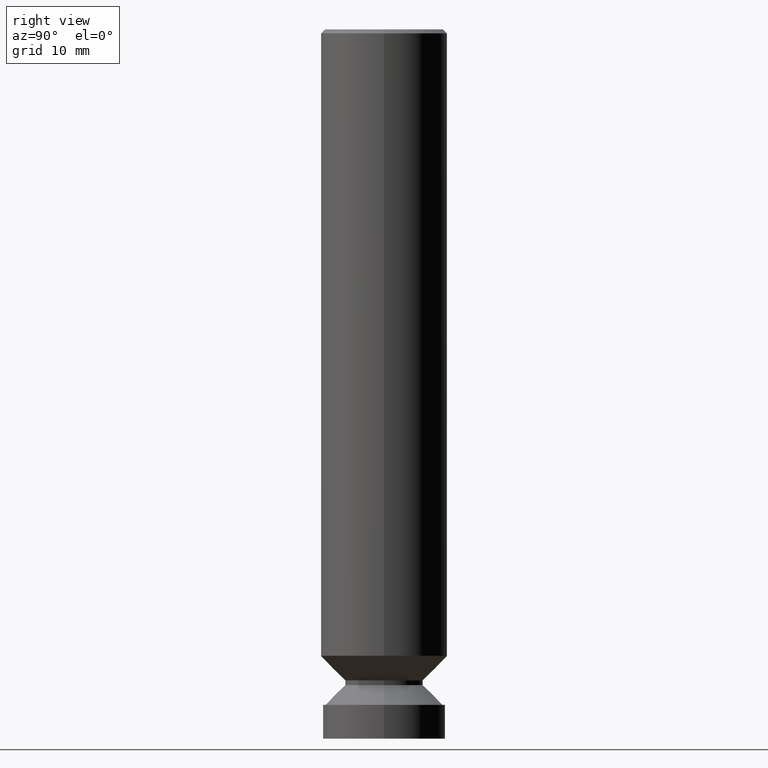
[diagram: clean part render]
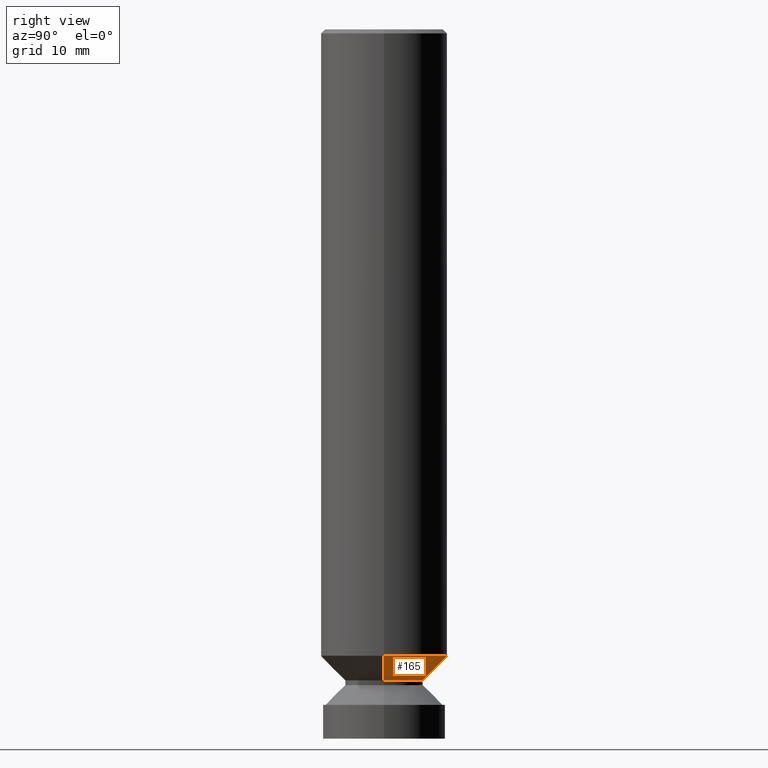
[diagram: same view with one face highlighted and labeled with its STEP entity id]
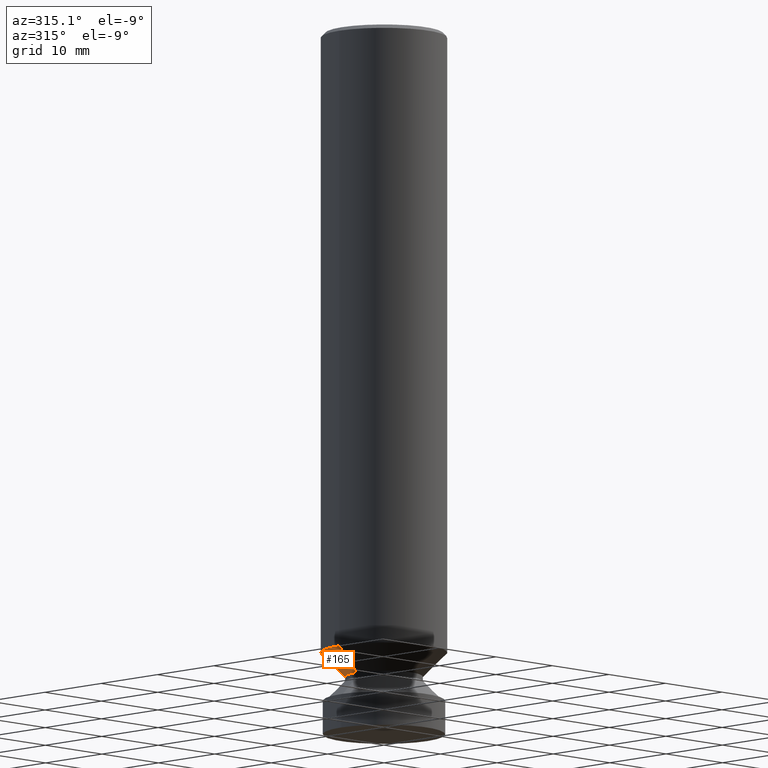
[diagram: same view with one face highlighted and labeled with its STEP entity id]
A machine part, right view. The second image highlights one B-rep face of the part: STEP entity #165.
A second angle (auxiliary view) of the same face is appended — the face is thin or edge-on in the first view.
In plain terms, the highlighted conical surface has half-angle 45 deg.
Its self-contained STEP definition (entity closure, byte-faithful):
#3 = CARTESIAN_POINT ( 'NONE',  ( 7.855333339314627254E-29, -1.121533412948922282E-14, -3.212199362120970125 ) ) ;
#5 = ORIENTED_EDGE ( 'NONE', *, *, #248, .F. ) ;
#10 = LINE ( 'NONE', #708, #456 ) ;
#22 = VERTEX_POINT ( 'NONE', #438 ) ;
#32 = DIRECTION ( 'NONE',  ( -2.445468806185136597E-29, 3.491481338843145583E-15, 1.000000000000000000 ) ) ;
#75 = CONICAL_SURFACE ( 'NONE', #480, 0.1922500000000000042, 0.7853981633974964627 ) ;
#85 = EDGE_CURVE ( 'NONE', #284, #22, #365, .T. ) ;
#89 = LINE ( 'NONE', #222, #681 ) ;
#121 = CARTESIAN_POINT ( 'NONE',  ( 0.1922500000000000042, -1.255780870427440876E-14, -3.212199362120970125 ) ) ;
#165 = ADVANCED_FACE ( 'NONE', ( #167 ), #75, .T. ) ;
#167 = FACE_OUTER_BOUND ( 'NONE', #710, .T. ) ;
#169 = DIRECTION ( 'NONE',  ( 1.000000000000000000, -6.982962677686269077E-15, 0.000000000000000000 ) ) ;
#217 = VERTEX_POINT ( 'NONE', #570 ) ;
#222 = CARTESIAN_POINT ( 'NONE',  ( -0.1922500000000000042, -9.849315719990429988E-15, -3.212199362120970125 ) ) ;
#248 = EDGE_CURVE ( 'NONE', #217, #705, #663, .T. ) ;
#284 = VERTEX_POINT ( 'NONE', #121 ) ;
#298 = CARTESIAN_POINT ( 'NONE',  ( 7.561265715370891456E-29, -1.079548349849337449E-14, -3.091949362120981704 ) ) ;
#322 = AXIS2_PLACEMENT_3D ( 'NONE', #3, #536, #457 ) ;
#338 = ORIENTED_EDGE ( 'NONE', *, *, #814, .F. ) ;
#353 = CARTESIAN_POINT ( 'NONE',  ( 7.855333339314627254E-29, -1.121533412948922282E-14, -3.212199362120970125 ) ) ;
#365 = CIRCLE ( 'NONE', #322, 0.1922500000000000042 ) ;
#408 = ORIENTED_EDGE ( 'NONE', *, *, #554, .T. ) ;
#413 = ORIENTED_EDGE ( 'NONE', *, *, #85, .T. ) ;
#423 = CARTESIAN_POINT ( 'NONE',  ( -0.3125000000000000000, -8.575037449243061404E-15, -3.091949362120981704 ) ) ;
#438 = CARTESIAN_POINT ( 'NONE',  ( -0.1922500000000000042, -9.890340625721883836E-15, -3.212199362120970125 ) ) ;
#456 = VECTOR ( 'NONE', #698, 39.37007874015748143 ) ;
#457 = DIRECTION ( 'NONE',  ( 1.000000000000000000, -6.982962677686265133E-15, 0.000000000000000000 ) ) ;
#480 = AXIS2_PLACEMENT_3D ( 'NONE', #353, #32, #487 ) ;
#487 = DIRECTION ( 'NONE',  ( 1.000000000000000000, -6.982962677686265133E-15, 0.000000000000000000 ) ) ;
#536 = DIRECTION ( 'NONE',  ( -2.445468806185136597E-29, 3.491481338843145583E-15, 1.000000000000000000 ) ) ;
#554 = EDGE_CURVE ( 'NONE', #22, #705, #89, .T. ) ;
#570 = CARTESIAN_POINT ( 'NONE',  ( 0.3125000000000000000, -1.297765933527033441E-14, -3.091949362120981704 ) ) ;
#597 = DIRECTION ( 'NONE',  ( -0.7071067811865815456, 7.493145998870477222E-15, 0.7071067811865134889 ) ) ;
#663 = CIRCLE ( 'NONE', #722, 0.3125000000000000000 ) ;
#681 = VECTOR ( 'NONE', #597, 39.37007874015748143 ) ;
#698 = DIRECTION ( 'NONE',  ( 0.7071067811865815456, -2.468850131082613626E-15, 0.7071067811865134889 ) ) ;
#705 = VERTEX_POINT ( 'NONE', #423 ) ;
#708 = CARTESIAN_POINT ( 'NONE',  ( 0.1922500000000000042, -1.255780870427440876E-14, -3.212199362120970125 ) ) ;
#710 = EDGE_LOOP ( 'NONE', ( #413, #408, #5, #338 ) ) ;
#722 = AXIS2_PLACEMENT_3D ( 'NONE', #298, #754, #169 ) ;
#754 = DIRECTION ( 'NONE',  ( -2.445468806185136597E-29, 3.491481338843145583E-15, 1.000000000000000000 ) ) ;
#814 = EDGE_CURVE ( 'NONE', #284, #217, #10, .T. ) ;